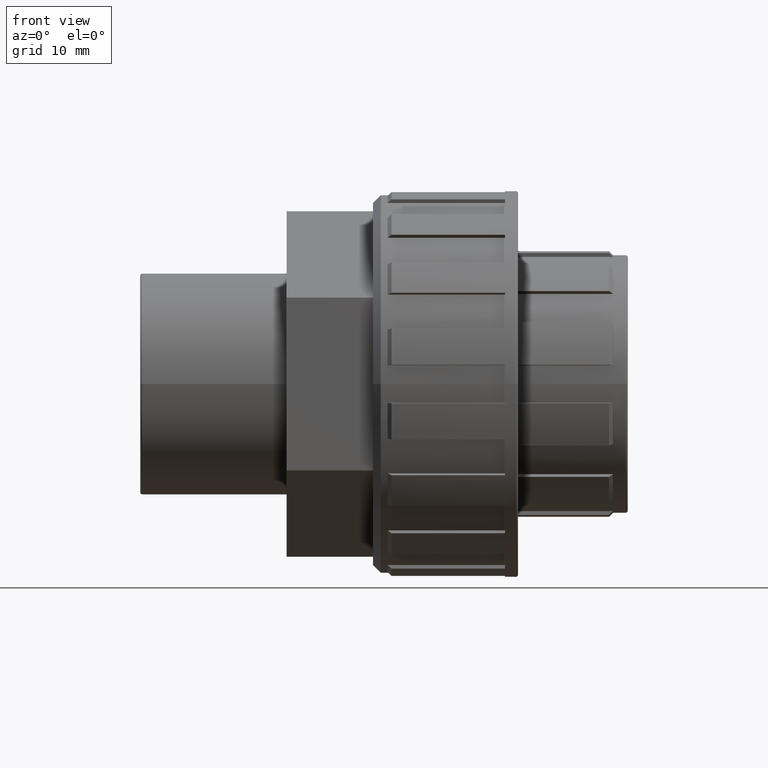
[diagram: clean part render]
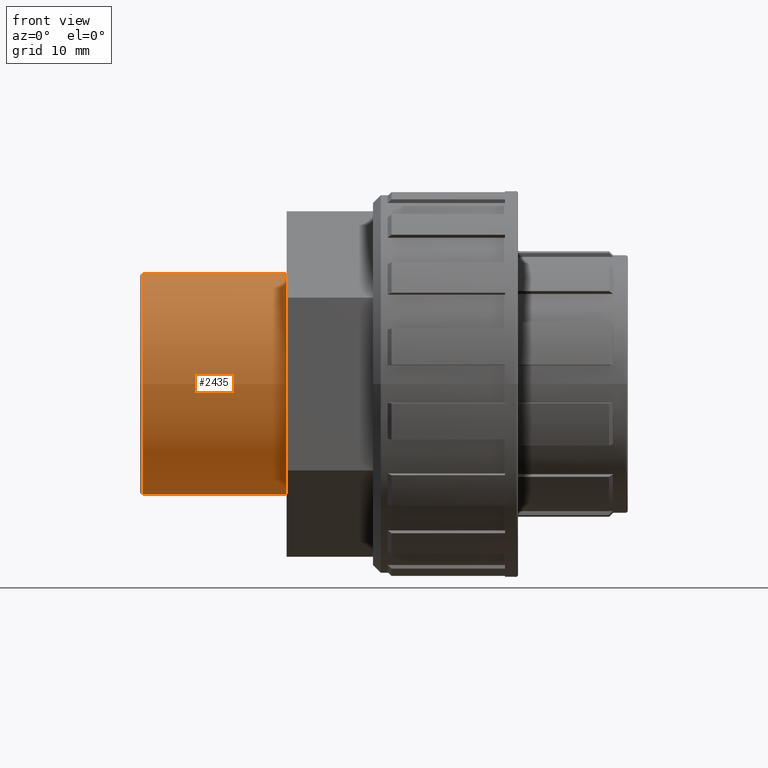
[diagram: same view with one face highlighted and labeled with its STEP entity id]
A machine part, front view. The second image highlights one B-rep face of the part: STEP entity #2435.
In plain terms, the highlighted cylindrical surface (bore or boss wall) has radius 16.6245 mm, axis along (-1, -0, 0).
Its self-contained STEP definition (entity closure, byte-faithful):
#59=FACE_BOUND('',#474,.T.);
#83=CYLINDRICAL_SURFACE('',#2684,16.6245);
#201=CIRCLE('',#2683,16.6245);
#202=CIRCLE('',#2685,16.6245);
#329=FACE_OUTER_BOUND('',#473,.T.);
#473=EDGE_LOOP('',(#2129));
#474=EDGE_LOOP('',(#2130));
#1178=VERTEX_POINT('',#4131);
#1179=VERTEX_POINT('',#4134);
#1525=EDGE_CURVE('',#1178,#1178,#201,.T.);
#1526=EDGE_CURVE('',#1179,#1179,#202,.T.);
#2129=ORIENTED_EDGE('',*,*,#1526,.T.);
#2130=ORIENTED_EDGE('',*,*,#1525,.F.);
#2435=ADVANCED_FACE('',(#329,#59),#83,.T.);
#2683=AXIS2_PLACEMENT_3D('',#4132,#3397,#3398);
#2684=AXIS2_PLACEMENT_3D('',#4133,#3399,#3400);
#2685=AXIS2_PLACEMENT_3D('',#4135,#3401,#3402);
#3397=DIRECTION('center_axis',(-1.,-1.83697019872103E-16,0.));
#3398=DIRECTION('ref_axis',(-1.83651437199265E-16,1.,6.12323399573677E-17));
#3399=DIRECTION('center_axis',(-1.,-1.83697019872103E-16,0.));
#3400=DIRECTION('ref_axis',(2.00347022399198E-16,-1.,0.));
#3401=DIRECTION('center_axis',(-1.,-1.83697019872103E-16,0.));
#3402=DIRECTION('ref_axis',(0.,0.,1.));
#4131=CARTESIAN_POINT('',(-36.34709,-16.6245,1.01795703562126E-15));
#4132=CARTESIAN_POINT('Origin',(-36.34709,5.56436642894581E-17,0.));
#4133=CARTESIAN_POINT('Origin',(-25.65,2.02066721859313E-15,0.));
#4134=CARTESIAN_POINT('',(-14.65,-16.6245,0.));
#4135=CARTESIAN_POINT('Origin',(-14.65,4.04133443718627E-15,0.));